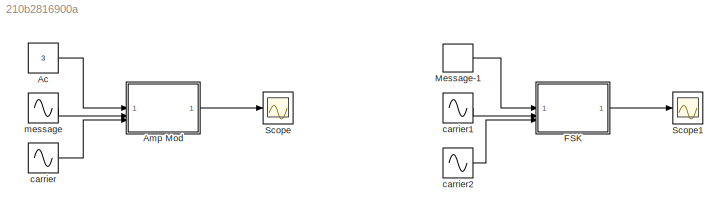
MODEL slx_210b2816900a
KIND model
CONFIG AbsTol = auto
CONFIG EnableMultiTasking = off
CONFIG FixedStep = auto
CONFIG MaxStep = auto
CONFIG MinStep = auto
CONFIG RelTol = 1e-3
CONFIG SampleTimeConstraint = Unconstrained
CONFIG SolverName = VariableStepAuto
CONFIG StartTime = 0.0
CONFIG StopTime = 10.0
BLOCK [Constant] Ac
  Value = 3
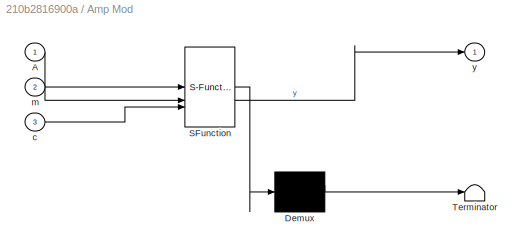
BLOCK [SubSystem] Amp Mod
  ErrorFcn = Stateflow.Translate.translate
  PermitHierarchicalResolution = ExplicitOnly
  SFBlockType = MATLAB Function
  TreatAsAtomicUnit = on
BLOCK [Demux] Amp Mod/ Demux 
  Outputs = 1
BLOCK [S-Function] Amp Mod/ SFunction 
  EnableBusSupport = on
  FunctionName = sf_sfun
  PortCounts = [3 2]
  SFcnIsStateOwnerBlock = off
  SFunctionDeploymentMode = off
  Tag = Stateflow S-Function 2
BLOCK [Terminator] Amp Mod/ Terminator 
BLOCK [Inport] Amp Mod/A
BLOCK [Inport] Amp Mod/c
  Port = 3
BLOCK [Inport] Amp Mod/m
  Port = 2
BLOCK [Outport] Amp Mod/y
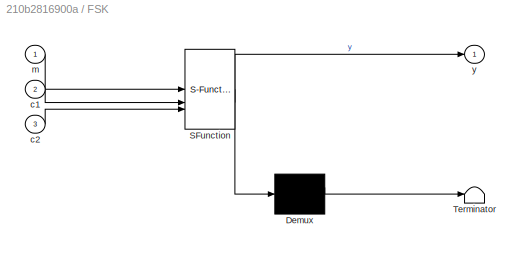
BLOCK [SubSystem] FSK
  ErrorFcn = Stateflow.Translate.translate
  PermitHierarchicalResolution = ExplicitOnly
  SFBlockType = MATLAB Function
  TreatAsAtomicUnit = on
BLOCK [Demux] FSK/ Demux 
  Outputs = 1
BLOCK [S-Function] FSK/ SFunction 
  EnableBusSupport = on
  FunctionName = sf_sfun
  PortCounts = [3 2]
  SFcnIsStateOwnerBlock = off
  SFunctionDeploymentMode = off
  Tag = Stateflow S-Function 1
BLOCK [Terminator] FSK/ Terminator 
BLOCK [Inport] FSK/c1
  Port = 2
BLOCK [Inport] FSK/c2
  Port = 3
BLOCK [Inport] FSK/m
BLOCK [Outport] FSK/y
BLOCK [DiscretePulseGenerator] Message-1
  PulseType = Time based
  PulseWidth = 50
BLOCK [Scope] Scope
  Floating = off
  NumInputPorts = 1
  ScopeSpecificationString = Simulink.scopes.TimeScopeBlockCfg('CurrentConfiguration', extmgr.ConfigurationSet(extmgr.Configuration('Core','General UI',true),extmgr.Configuration('Core','Source UI',true),extmgr.Configuration('Sources','WiredSimulink',true),extmgr.Configuration('Visuals','Time Domain',true,'SerializedDisplays',{struct('MinYLimReal','-7.48828','MaxYLimReal','7.48836','YLabelReal','','MinYLimMag','0.00000','MaxY...<+1327ch>
BLOCK [Scope] Scope1
  Floating = off
  NumInputPorts = 1
  ScopeSpecificationString = Simulink.scopes.TimeScopeBlockCfg('CurrentConfiguration', extmgr.ConfigurationSet(extmgr.Configuration('Core','General UI',true),extmgr.Configuration('Core','Source UI',true),extmgr.Configuration('Sources','WiredSimulink',true,'DataLoggingVariableName','ScopeData1'),extmgr.Configuration('Visuals','Time Domain',true,'SerializedDisplays',{struct('MinYLimReal','-1.25','MaxYLimReal','1.25','YLabelReal...<+1344ch>
BLOCK [Sin] carrier
  Frequency = 20
  SampleTime = 0.001
BLOCK [Sin] carrier1
  Frequency = 40
  SampleTime = 0.001
BLOCK [Sin] carrier2
  Frequency = 10
  SampleTime = 0.001
BLOCK [Sin] message
  Amplitude = 3
  SampleTime = 0.001
LINE Ac:1 -> Amp Mod:1
LINE Amp Mod:1 -> Scope:1
LINE FSK:1 -> Scope1:1
LINE Message-1:1 -> FSK:1
LINE carrier1:1 -> FSK:2
LINE carrier2:1 -> FSK:3
LINE carrier:1 -> Amp Mod:3
LINE message:1 -> Amp Mod:2
CHART FSK states=1 transitions=1
  STATE_LABEL 'eML_blk_kernel()'
  STATE_LABEL 'SCRIPT:\nfunction y = fcn(m, c1, c2)\n if(m ==1) \n   y = c1;  \n else\n   y = c2;\n end'
CHART Amp Mod states=1 transitions=1
  STATE_LABEL 'eML_blk_kernel()'
  STATE_LABEL 'SCRIPT:\nfunction y = fcn(A, m, c)\ny = (A+ m)*c;\n'
CHART  states=0 transitions=0
CHART  states=0 transitions=0
